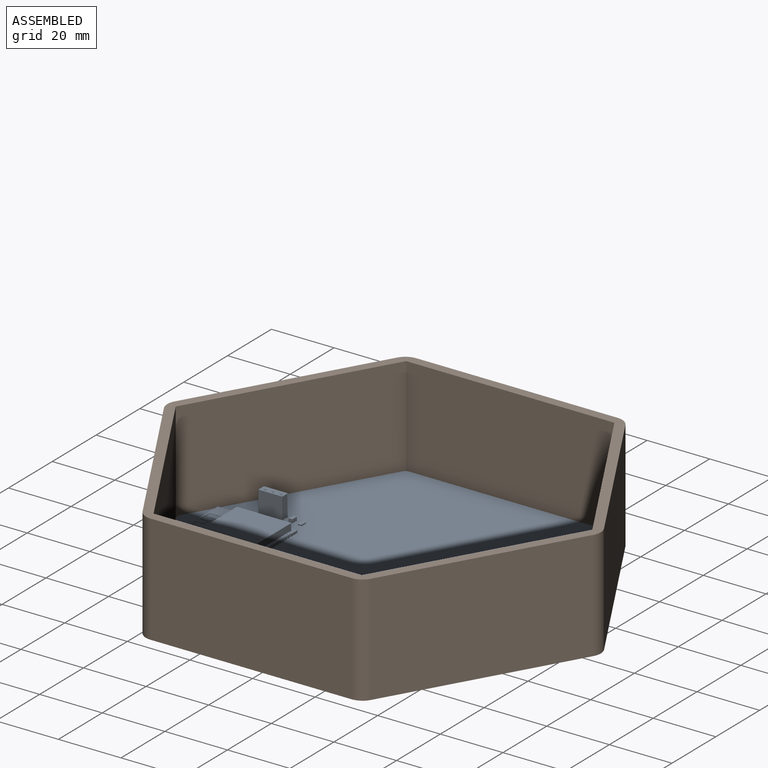
[diagram: assembled view]
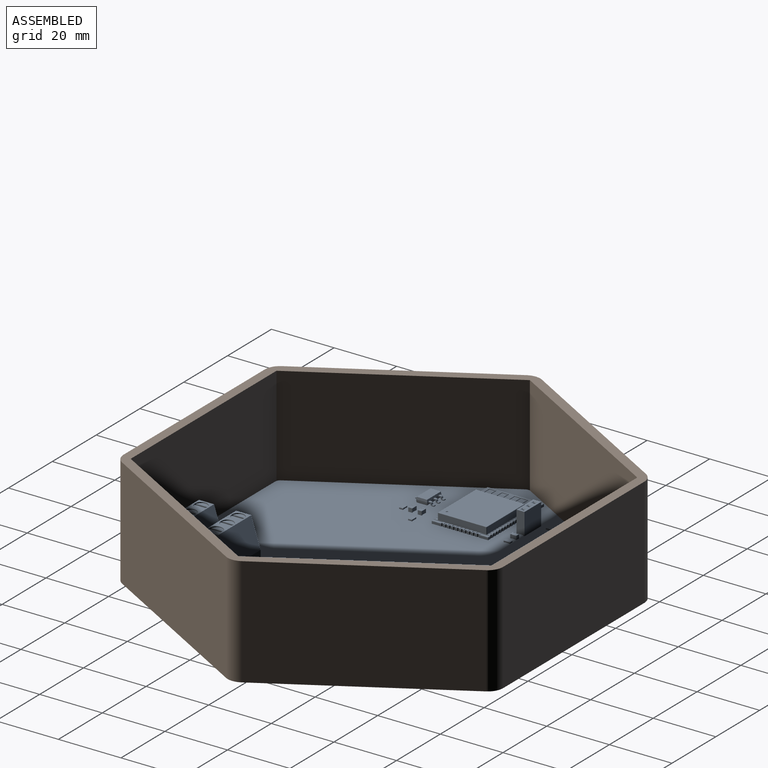
[diagram: assembled view, second angle]
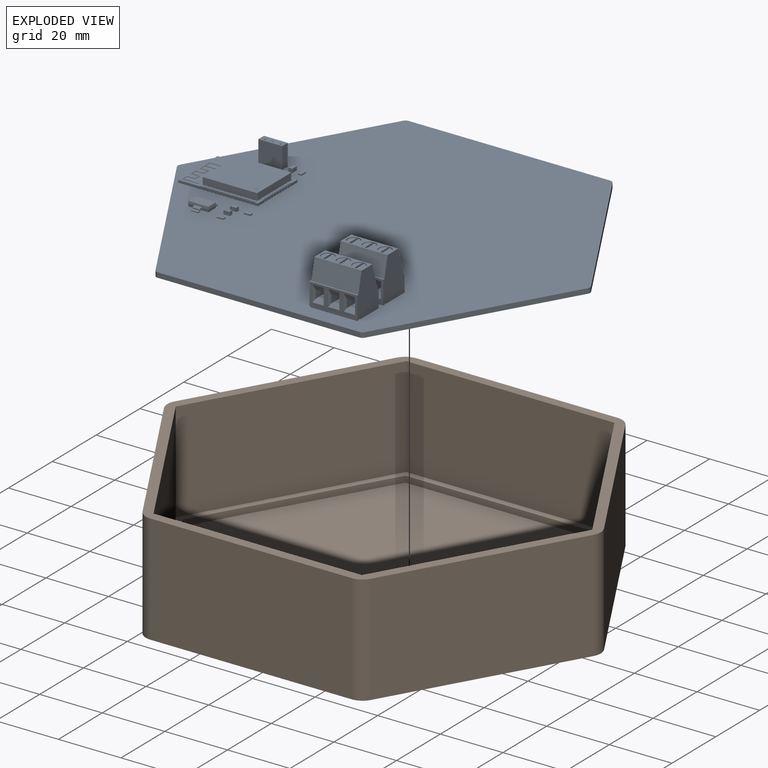
[diagram: exploded view]
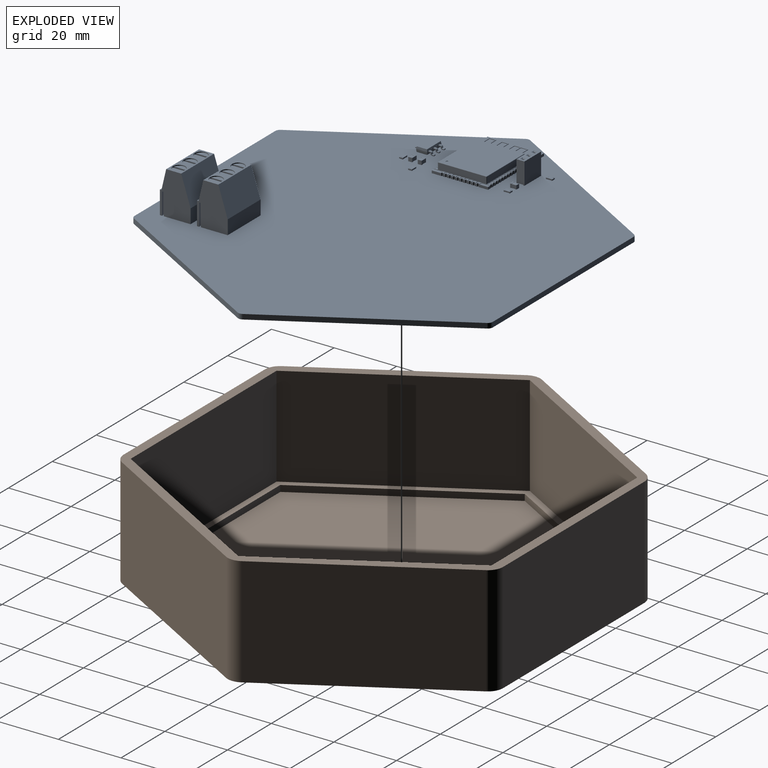
[diagram: exploded view, second angle]
FCSTD DOCUMENT  (FreeCAD 0.19R24276 (Git))
Label: Hexagonal Rev v0.0.0
License: All rights reserved
LicenseURL: http://en.wikipedia.org/wiki/All_rights_reserved
objects: App::Link×87, Part::Feature×9, App::Part×6, PartDesign::SubShapeBinder×3, Sketcher::SketchObject×2, PartDesign::Pad×2, Part::Offset2D×2, PartDesign::Pocket×2, PartDesign::Body×2, PartDesign::Fillet×1, PartDesign::CoordinateSystem×1
note: 29 computed .brp shape members not serialized (recipe doc carries the construction recipe); baked Part::Feature solids carry a one-line shape summary decoded from their .brp

FEATURE [Part::Feature] Feature  label="MW RS-15-006"
  Placement = pos=(-0.488075,-61.8454,-12) rot=(0.983106,0.129428,0.129428;1.58783rad)
  shape: bbox 69.45 x 101.1 x 28 mm, 1198 faces, 20 solids (baked)
FEATURE [Sketcher::SketchObject] Sketch
  FullyConstrained = true
  MapMode = 5
  Support = -> [XY_Plane001]
  sketch-geometry (7):
    g0: LineSegment StartX=70 StartY=0 StartZ=0 EndX=35 EndY=60.6218 EndZ=0
    g1: LineSegment StartX=35 StartY=60.6218 StartZ=0 EndX=-35 EndY=60.6218 EndZ=0
    g2: LineSegment StartX=-35 StartY=60.6218 StartZ=0 EndX=-70 EndY=2.13e-14 EndZ=0
    g3: LineSegment StartX=-70 StartY=1.86e-14 StartZ=0 EndX=-35 EndY=-60.6218 EndZ=0
    g4: LineSegment StartX=-35 StartY=-60.6218 StartZ=0 EndX=35 EndY=-60.6218 EndZ=0
    g5: LineSegment StartX=35 StartY=-60.6218 StartZ=0 EndX=70 EndY=0 EndZ=0
    g6: Circle CenterX=0 CenterY=0 CenterZ=0 NormalX=0 NormalY=0 NormalZ=1 AngleXU=0 Radius=70
  constraints (16):
    c: Coincident(g0,g1)
    c: Coincident(g1,g2)
    c: Coincident(g2,g3)
    c: Coincident(g3,g4)
    c: Coincident(g4,g5)
    c: Coincident(g5,g0)
    c: Equal(g0, g1-g5) x5
    c: PointOnObject(g0,g6)
    c: PointOnObject(g1,g6)
    c: PointOnObject(g2,g6)
    c: PointOnObject(g3,g6)
    c: PointOnObject(g4,g6)
    c: PointOnObject(g5,g6)
    c: Coincident(g6,g-1)
    c: PointOnObject(g0,g-1)
    c: Distance(g0,g2) = 140
FEATURE [PartDesign::Pad] Pad
  Direction = (1,1,1)
  Length = 34
  Length2 = 100
  Profile = -> Sketch
  Type = 0
FEATURE [PartDesign::SubShapeBinder] Binder
  BindMode = 0
  ClaimChildren = false
  Context = -> Part [Body.Binder.]
  Fuse = false
  MakeFace = true
  PartialLoad = false
  Relative = true
  Support = -> [Pad[Face8]]
  _Version = 2
FEATURE [Part::Offset2D] Offset2D
  Fill = false
  Intersection = false
  Join = 0
  Mode = 1
  SelfIntersection = false
  Source = -> Binder
  Value = -3
FEATURE [PartDesign::Pocket] Pocket
  BaseFeature = -> Pad
  Length = 32
  Length2 = 100
  Profile = -> Offset2D
  Type = 0
  expr: Length = Pad.Length - 2mm
FEATURE [PartDesign::SubShapeBinder] Binder001
  BindMode = 0
  ClaimChildren = false
  Context = -> Part [Body.Binder001.]
  Fuse = false
  MakeFace = true
  PartialLoad = false
  Relative = true
  Support = -> [Pocket[Face15]]
  _Version = 2
FEATURE [Part::Offset2D] Offset2D001
  Fill = false
  Intersection = false
  Join = 0
  Mode = 1
  SelfIntersection = false
  Source = -> Binder001
  Value = -2
FEATURE [PartDesign::Pocket] Pocket001
  BaseFeature = -> Pocket
  Length = 5
  Length2 = 100
  Profile = -> Offset2D001
  Type = 1
FEATURE [PartDesign::Fillet] Fillet
  Base = -> Pocket001 [Edge2,Edge8,Edge30,Edge29,Edge5,Edge1]
  BaseFeature = -> Pocket001
  Radius = 5
  SupportTransform = false
FEATURE [PartDesign::Body] Body  label="Housing"
  Group = -> [Sketch,Pad,Binder,Offset2D,Pocket,Binder001,Offset2D001,Pocket001,Fillet]
  Origin = -> Origin001
  Tip = -> Fillet
FEATURE [PartDesign::SubShapeBinder] Binder002
  BindMode = 0
  ClaimChildren = false
  Context = -> Part [Body001.Binder002.]
  Fuse = false
  MakeFace = true
  PartialLoad = false
  Relative = true
  Support = -> [Body[Edge15,Edge13,Edge11,Edge9,Edge7,Edge5,Edge1,Edge8]]
  _Version = 2
FEATURE [PartDesign::Pad] Pad001
  Direction = (1,1,1)
  Length = 1
  Length2 = 100
  Profile = -> Binder002
  Reversed = true
  Type = 0
FEATURE [PartDesign::Body] Body001  label="Diffuser"
  Group = -> [Binder002,Pad001]
  Origin = -> Origin002
  Tip = -> Pad001
FEATURE [App::Part] Part  label="SpotBody"
  Group = -> [Body,Body001]
  Origin = -> Origin
FEATURE [PartDesign::CoordinateSystem] Local_CS_956a
  AttacherType = Attacher::AttachEngine3D
FEATURE [Part::Feature] Pcb_956a
  Placement = pos=(-100,100,0) rot=(0,0,1;0rad)
  shape: bbox 131.7 x 114.4 x 1.6 mm, 23 faces (baked)
FEATURE [Sketcher::SketchObject] PCB_Sketch_956a
  FullyConstrained = false
  sketch-geometry (12):
    g0: LineSegment StartX=65.6118 StartY=0.8 StartZ=0 EndX=33.499 EndY=56.422 EndZ=0
    g1: LineSegment StartX=32.1132 StartY=57.2223 StartZ=0 EndX=-32.113 EndY=57.2223 EndZ=0
    g2: LineSegment StartX=-33.499 StartY=56.422 StartZ=0 EndX=-65.612 EndY=0.8 EndZ=0
    g3: LineSegment StartX=-65.6118 StartY=-0.800311 StartZ=0 EndX=-33.499 EndY=-56.422 EndZ=0
    g4: LineSegment StartX=-32.1132 StartY=-57.2223 StartZ=0 EndX=32.113 EndY=-57.2223 EndZ=0
    g5: LineSegment StartX=33.499 StartY=-56.422 StartZ=0 EndX=65.612 EndY=-0.8 EndZ=0
    g6: ArcOfCircle CenterX=32.113 CenterY=55.622 CenterZ=0 NormalX=0 NormalY=0 NormalZ=1 AngleXU=0 Radius=1.60031 StartAngle=0.523486 EndAngle=1.57068
    g7: ArcOfCircle CenterX=-32.113 CenterY=55.622 CenterZ=0 NormalX=0 NormalY=0 NormalZ=1 AngleXU=0 Radius=1.60031 StartAngle=1.5708 EndAngle=2.61811
    g8: ArcOfCircle CenterX=-64.226 CenterY=-2.15721e-11 CenterZ=0 NormalX=0 NormalY=0 NormalZ=1 AngleXU=0 Radius=1.60031 StartAngle=2.61811 EndAngle=3.6653
    g9: ArcOfCircle CenterX=-32.113 CenterY=-55.622 CenterZ=0 NormalX=0 NormalY=0 NormalZ=1 AngleXU=0 Radius=1.60031 StartAngle=3.66508 EndAngle=4.71228
    g10: ArcOfCircle CenterX=32.113 CenterY=-55.622 CenterZ=0 NormalX=0 NormalY=0 NormalZ=1 AngleXU=0 Radius=1.60031 StartAngle=4.71239 EndAngle=5.7597
    g11: ArcOfCircle CenterX=64.226 CenterY=-0.000155635 CenterZ=0 NormalX=0 NormalY=0 NormalZ=1 AngleXU=0 Radius=1.60023 StartAngle=5.75978 EndAngle=6.80681
  constraints (12):
    c: Coincident(g8,g3)
    c: Coincident(g2,g8)
    c: Coincident(g9,g3)
    c: Coincident(g2,g7)
    c: Coincident(g4,g9)
    c: Coincident(g1,g7)
    c: Coincident(g4,g10)
    c: Coincident(g6,g1)
    c: Coincident(g5,g10)
    c: Coincident(g0,g6)
    c: Coincident(g5,g11)
    c: Coincident(g0,g11)
FEATURE [App::Part] Board_Geoms_956a
  Group = -> [Local_CS_956a,Pcb_956a,PCB_Sketch_956a]
  Origin = -> Origin004
FEATURE [Part::Feature] Shape  label="U2_SOT_223_60925A65"
  Placement = pos=(-45.7,-17.7,0) rot=(0,0,-1;1.5708rad)
  shape: bbox 6.5 x 7 x 1.7 mm, 78 faces (baked)
FEATURE [Part::Feature] Shape001  label="U1_ESP32-WROOM-32_60925A4F"
  Placement = pos=(-43.95,0.3,0) rot=(0,0,1;1.5708rad)
  shape: bbox 25.5 x 18 x 3.1 mm, 751 faces (baked)
FEATURE [Part::Feature] Shape002  label="R6_R_0805_2012Metric_609259E0"
  Placement = pos=(36.13,31.64,-1.6) rot=(1,0,0;3.14159rad)
  shape: bbox 2 x 1.2 x 0.45 mm, 26 faces (baked)
FEATURE [App::Link] R6_R_0805_2012Metric_609259E0_ln_001  label="R4_R_0805_2012Metric_609259BE"
  LinkPlacement = pos=(-33.32,-14.31,0) rot=(0,0,1;0rad)
  LinkedObject = -> Shape002
  Placement = pos=(-33.32,-14.31,0) rot=(0,0,1;0rad)
FEATURE [App::Link] R6_R_0805_2012Metric_609259E0_ln_002  label="R3_R_0805_2012Metric_609259AD"
  LinkPlacement = pos=(-37.77,-20.33,0) rot=(0,0,1;0rad)
  LinkedObject = -> Shape002
  Placement = pos=(-37.77,-20.33,0) rot=(0,0,1;0rad)
FEATURE [App::Link] R6_R_0805_2012Metric_609259E0_ln_003  label="R2_R_0805_2012Metric_6092599C"
  LinkPlacement = pos=(-48.91,18.88,0) rot=(0,0,1;1.5708rad)
  LinkedObject = -> Shape002
  Placement = pos=(-48.91,18.88,0) rot=(0,0,1;1.5708rad)
FEATURE [App::Link] R6_R_0805_2012Metric_609259E0_ln_004  label="R1_R_0805_2012Metric_6092598B"
  LinkPlacement = pos=(-36.2,14.28,0) rot=(0,0,1;1.5708rad)
  LinkedObject = -> Shape002
  Placement = pos=(-36.2,14.28,0) rot=(0,0,1;1.5708rad)
FEATURE [Part::Feature] Shape003  label="J3_TerminalBlock_Phoenix_MKDS_15_3_1x03_P500mm_Horizontal_609365AA"
  Placement = pos=(15.4,-35.6,0) rot=(0,0,1;0rad)
  shape: bbox 15.74 x 9.8 x 17.3 mm, 125 faces (baked)
FEATURE [App::Link] J3_TerminalBlock_Phoenix_MKDS_15_3_1x03_P500mm_Horizontal_609365AA_ln_  label="J2_TerminalBlock_Phoenix_MKDS_15_3_1x03_P500mm_Horizontal_60935B61"
  LinkPlacement = pos=(15.4,-47.46,0) rot=(0,0,1;0rad)
  LinkedObject = -> Shape003
  Placement = pos=(15.4,-47.46,0) rot=(0,0,1;0rad)
FEATURE [Part::Feature] Shape004  label="J1_PinSocket_1x03_P254mm_Vertical_60925910"
  Placement = pos=(-48.06,14.4,0) rot=(0,0,1;1.5708rad)
  shape: bbox 7.62 x 2.54 x 10.1 mm, 103 faces (baked)
FEATURE [Part::Feature] Shape006  label="C44_C_0805_2012Metric_60925561"
  Placement = pos=(7.4,42.5,-1.6) rot=(1,0,0;3.14159rad)
  shape: bbox 2 x 1.25 x 1.25 mm, 28 faces (baked)
FEATURE [App::Link] C44_C_0805_2012Metric_60925561_ln_039  label="C3_C_0805_2012Metric_609252B9"
  LinkPlacement = pos=(-39.18,14.3,0) rot=(0,0,1;1.5708rad)
  LinkedObject = -> Shape006
  Placement = pos=(-39.18,14.3,0) rot=(0,0,1;1.5708rad)
FEATURE [App::Link] C44_C_0805_2012Metric_60925561_ln_040  label="C2_C_0805_2012Metric_609252A8"
  LinkPlacement = pos=(-37.75,-14.34,0) rot=(0,0,1;0rad)
  LinkedObject = -> Shape006
  Placement = pos=(-37.75,-14.34,0) rot=(0,0,1;0rad)
FEATURE [App::Link] C44_C_0805_2012Metric_60925561_ln_041  label="C1_C_0805_2012Metric_60925297"
  LinkPlacement = pos=(-37.75,-17.35,0) rot=(0,0,1;0rad)
  LinkedObject = -> Shape006
  Placement = pos=(-37.75,-17.35,0) rot=(0,0,1;0rad)
FEATURE [App::Part] Top_956a
  Group = -> [Shape,Shape001,R6_R_0805_2012Metric_609259E0_ln_001,R6_R_0805_2012Metric_609259E0_ln_002,R6_R_0805_2012Metric_609259E0_ln_003,R6_R_0805_2012Metric_609259E0_ln_004,Shape003,J3_TerminalBlock_Phoenix_MKDS_15_3_1x03_P500mm_Horizontal_609365AA_ln_,Shape004,C44_C_0805_2012Metric_60925561_ln_039,C44_C_0805_2012Metric_60925561_ln_040,C44_C_0805_2012Metric_60925561_ln_041]
  Origin = -> Origin006
FEATURE [App::Link] R6_R_0805_2012Metric_609259E0_ln_  label="R5_R_0805_2012Metric_609259CF"
  LinkPlacement = pos=(52.97,15.39,-1.6) rot=(1,0,0;3.14159rad)
  LinkedObject = -> Shape002
  Placement = pos=(52.97,15.39,-1.6) rot=(1,0,0;3.14159rad)
FEATURE [Part::Feature] Shape005  label="D40_LED_WS2812B_PLCC4_50x50mm_P32mm_609324D2"
  Placement = pos=(13.065,32.385,-1.6) rot=(1,0,0;3.14159rad)
  shape: bbox 5.4 x 5 x 1.6 mm, 68 faces (baked)
FEATURE [App::Link] D40_LED_WS2812B_PLCC4_50x50mm_P32mm_609324D2_ln_  label="D39_LED_WS2812B_PLCC4_50x50mm_P32mm_60932514"
  LinkPlacement = pos=(-20.615,19.145,-1.6) rot=(1,0,0;3.14159rad)
  LinkedObject = -> Shape005
  Placement = pos=(-20.615,19.145,-1.6) rot=(1,0,0;3.14159rad)
FEATURE [App::Link] D40_LED_WS2812B_PLCC4_50x50mm_P32mm_609324D2_ln_001  label="D38_LED_WS2812B_PLCC4_50x50mm_P32mm_60932556"
  LinkPlacement = pos=(-12.195,12.525,-1.6) rot=(1,0,0;3.14159rad)
  LinkedObject = -> Shape005
  Placement = pos=(-12.195,12.525,-1.6) rot=(1,0,0;3.14159rad)
FEATURE [App::Link] D40_LED_WS2812B_PLCC4_50x50mm_P32mm_609324D2_ln_002  label="D37_LED_WS2812B_PLCC4_50x50mm_P32mm_60932598"
  LinkPlacement = pos=(-3.775,5.905,-1.6) rot=(1,0,0;3.14159rad)
  LinkedObject = -> Shape005
  Placement = pos=(-3.775,5.905,-1.6) rot=(1,0,0;3.14159rad)
FEATURE [App::Link] D40_LED_WS2812B_PLCC4_50x50mm_P32mm_609324D2_ln_003  label="D36_LED_WS2812B_PLCC4_50x50mm_P32mm_609325DA"
  LinkPlacement = pos=(4.645,-0.715,-1.6) rot=(1,0,0;3.14159rad)
  LinkedObject = -> Shape005
  Placement = pos=(4.645,-0.715,-1.6) rot=(1,0,0;3.14159rad)
FEATURE [App::Link] D40_LED_WS2812B_PLCC4_50x50mm_P32mm_609324D2_ln_004  label="D35_LED_WS2812B_PLCC4_50x50mm_P32mm_6093261C"
  LinkPlacement = pos=(-20.615,25.765,-1.6) rot=(1,0,0;3.14159rad)
  LinkedObject = -> Shape005
  Placement = pos=(-20.615,25.765,-1.6) rot=(1,0,0;3.14159rad)
FEATURE [App::Link] D40_LED_WS2812B_PLCC4_50x50mm_P32mm_609324D2_ln_005  label="D34_LED_WS2812B_PLCC4_50x50mm_P32mm_6093265E"
  LinkPlacement = pos=(-20.615,-0.715,-1.6) rot=(1,0,0;3.14159rad)
  LinkedObject = -> Shape005
  Placement = pos=(-20.615,-0.715,-1.6) rot=(1,0,0;3.14159rad)
FEATURE [App::Link] D40_LED_WS2812B_PLCC4_50x50mm_P32mm_609324D2_ln_006  label="D33_LED_WS2812B_PLCC4_50x50mm_P32mm_609326A0"
  LinkPlacement = pos=(-3.775,12.525,-1.6) rot=(1,0,0;3.14159rad)
  LinkedObject = -> Shape005
  Placement = pos=(-3.775,12.525,-1.6) rot=(1,0,0;3.14159rad)
FEATURE [App::Link] D40_LED_WS2812B_PLCC4_50x50mm_P32mm_609324D2_ln_007  label="D32_LED_WS2812B_PLCC4_50x50mm_P32mm_609326E2"
  LinkPlacement = pos=(4.645,5.905,-1.6) rot=(1,0,0;3.14159rad)
  LinkedObject = -> Shape005
  Placement = pos=(4.645,5.905,-1.6) rot=(1,0,0;3.14159rad)
FEATURE [App::Link] D40_LED_WS2812B_PLCC4_50x50mm_P32mm_609324D2_ln_008  label="D31_LED_WS2812B_PLCC4_50x50mm_P32mm_60932724"
  LinkPlacement = pos=(13.065,-0.715,-1.6) rot=(1,0,0;3.14159rad)
  LinkedObject = -> Shape005
  Placement = pos=(13.065,-0.715,-1.6) rot=(1,0,0;3.14159rad)
FEATURE [App::Link] D40_LED_WS2812B_PLCC4_50x50mm_P32mm_609324D2_ln_009  label="D30_LED_WS2812B_PLCC4_50x50mm_P32mm_60932766"
  LinkPlacement = pos=(-3.775,-0.715,-1.6) rot=(1,0,0;3.14159rad)
  LinkedObject = -> Shape005
  Placement = pos=(-3.775,-0.715,-1.6) rot=(1,0,0;3.14159rad)
FEATURE [App::Link] D40_LED_WS2812B_PLCC4_50x50mm_P32mm_609324D2_ln_010  label="D29_LED_WS2812B_PLCC4_50x50mm_P32mm_60932280"
  LinkPlacement = pos=(-20.615,5.905,-1.6) rot=(1,0,0;3.14159rad)
  LinkedObject = -> Shape005
  Placement = pos=(-20.615,5.905,-1.6) rot=(1,0,0;3.14159rad)
FEATURE [App::Link] D40_LED_WS2812B_PLCC4_50x50mm_P32mm_609324D2_ln_011  label="D28_LED_WS2812B_PLCC4_50x50mm_P32mm_609322C2"
  LinkPlacement = pos=(51.1,1.7,-1.6) rot=(1,0,0;3.14159rad)
  LinkedObject = -> Shape005
  Placement = pos=(51.1,1.7,-1.6) rot=(1,0,0;3.14159rad)
FEATURE [App::Link] D40_LED_WS2812B_PLCC4_50x50mm_P32mm_609324D2_ln_012  label="D27_LED_WS2812B_PLCC4_50x50mm_P32mm_60932304"
  LinkPlacement = pos=(40.525,6.855,-1.6) rot=(1,0,0;3.14159rad)
  LinkedObject = -> Shape005
  Placement = pos=(40.525,6.855,-1.6) rot=(1,0,0;3.14159rad)
FEATURE [App::Link] D40_LED_WS2812B_PLCC4_50x50mm_P32mm_609324D2_ln_013  label="D26_LED_WS2812B_PLCC4_50x50mm_P32mm_60932388"
  LinkPlacement = pos=(31.855,12.025,-1.6) rot=(1,0,0;3.14159rad)
  LinkedObject = -> Shape005
  Placement = pos=(31.855,12.025,-1.6) rot=(1,0,0;3.14159rad)
FEATURE [App::Link] D40_LED_WS2812B_PLCC4_50x50mm_P32mm_609324D2_ln_014  label="D25_LED_WS2812B_PLCC4_50x50mm_P32mm_609323CA"
  LinkPlacement = pos=(22.335,17.695,-1.6) rot=(1,0,0;3.14159rad)
  LinkedObject = -> Shape005
  Placement = pos=(22.335,17.695,-1.6) rot=(1,0,0;3.14159rad)
FEATURE [App::Link] D40_LED_WS2812B_PLCC4_50x50mm_P32mm_609324D2_ln_015  label="D24_LED_WS2812B_PLCC4_50x50mm_P32mm_6093240C"
  LinkPlacement = pos=(-3.775,25.765,-1.6) rot=(1,0,0;3.14159rad)
  LinkedObject = -> Shape005
  Placement = pos=(-3.775,25.765,-1.6) rot=(1,0,0;3.14159rad)
FEATURE [App::Link] D40_LED_WS2812B_PLCC4_50x50mm_P32mm_609324D2_ln_016  label="D23_LED_WS2812B_PLCC4_50x50mm_P32mm_6093244E"
  LinkPlacement = pos=(4.645,19.145,-1.6) rot=(1,0,0;3.14159rad)
  LinkedObject = -> Shape005
  Placement = pos=(4.645,19.145,-1.6) rot=(1,0,0;3.14159rad)
FEATURE [App::Link] D40_LED_WS2812B_PLCC4_50x50mm_P32mm_609324D2_ln_017  label="D22_LED_WS2812B_PLCC4_50x50mm_P32mm_60932346"
  LinkPlacement = pos=(13.065,12.525,-1.6) rot=(1,0,0;3.14159rad)
  LinkedObject = -> Shape005
  Placement = pos=(13.065,12.525,-1.6) rot=(1,0,0;3.14159rad)
FEATURE [App::Link] D40_LED_WS2812B_PLCC4_50x50mm_P32mm_609324D2_ln_018  label="D21_LED_WS2812B_PLCC4_50x50mm_P32mm_609327A8"
  LinkPlacement = pos=(22.335,4.455,-1.6) rot=(1,0,0;3.14159rad)
  LinkedObject = -> Shape005
  Placement = pos=(22.335,4.455,-1.6) rot=(1,0,0;3.14159rad)
FEATURE [App::Link] D40_LED_WS2812B_PLCC4_50x50mm_P32mm_609324D2_ln_019  label="D20_LED_WS2812B_PLCC4_50x50mm_P32mm_60931D9A"
  LinkPlacement = pos=(31.855,-1.215,-1.6) rot=(1,0,0;3.14159rad)
  LinkedObject = -> Shape005
  Placement = pos=(31.855,-1.215,-1.6) rot=(1,0,0;3.14159rad)
FEATURE [App::Link] D40_LED_WS2812B_PLCC4_50x50mm_P32mm_609324D2_ln_020  label="D19_LED_WS2812B_PLCC4_50x50mm_P32mm_60931DDC"
  LinkPlacement = pos=(-3.775,32.385,-1.6) rot=(1,0,0;3.14159rad)
  LinkedObject = -> Shape005
  Placement = pos=(-3.775,32.385,-1.6) rot=(1,0,0;3.14159rad)
FEATURE [App::Link] D40_LED_WS2812B_PLCC4_50x50mm_P32mm_609324D2_ln_021  label="D18_LED_WS2812B_PLCC4_50x50mm_P32mm_60931E1E"
  LinkPlacement = pos=(4.645,25.765,-1.6) rot=(1,0,0;3.14159rad)
  LinkedObject = -> Shape005
  Placement = pos=(4.645,25.765,-1.6) rot=(1,0,0;3.14159rad)
FEATURE [App::Link] D40_LED_WS2812B_PLCC4_50x50mm_P32mm_609324D2_ln_022  label="D17_LED_WS2812B_PLCC4_50x50mm_P32mm_60931E60"
  LinkPlacement = pos=(13.065,19.145,-1.6) rot=(1,0,0;3.14159rad)
  LinkedObject = -> Shape005
  Placement = pos=(13.065,19.145,-1.6) rot=(1,0,0;3.14159rad)
FEATURE [App::Link] D40_LED_WS2812B_PLCC4_50x50mm_P32mm_609324D2_ln_023  label="D16_LED_WS2812B_PLCC4_50x50mm_P32mm_60931EA2"
  LinkPlacement = pos=(22.335,11.075,-1.6) rot=(1,0,0;3.14159rad)
  LinkedObject = -> Shape005
  Placement = pos=(22.335,11.075,-1.6) rot=(1,0,0;3.14159rad)
FEATURE [App::Link] D40_LED_WS2812B_PLCC4_50x50mm_P32mm_609324D2_ln_024  label="D15_LED_WS2812B_PLCC4_50x50mm_P32mm_60931EE4"
  LinkPlacement = pos=(-12.195,32.385,-1.6) rot=(1,0,0;3.14159rad)
  LinkedObject = -> Shape005
  Placement = pos=(-12.195,32.385,-1.6) rot=(1,0,0;3.14159rad)
FEATURE [App::Link] D40_LED_WS2812B_PLCC4_50x50mm_P32mm_609324D2_ln_025  label="D14_LED_WS2812B_PLCC4_50x50mm_P32mm_60931F26"
  LinkPlacement = pos=(31.855,5.405,-1.6) rot=(1,0,0;3.14159rad)
  LinkedObject = -> Shape005
  Placement = pos=(31.855,5.405,-1.6) rot=(1,0,0;3.14159rad)
FEATURE [App::Link] D40_LED_WS2812B_PLCC4_50x50mm_P32mm_609324D2_ln_026  label="D13_LED_WS2812B_PLCC4_50x50mm_P32mm_60931F68"
  LinkPlacement = pos=(40.525,0.235,-1.6) rot=(1,0,0;3.14159rad)
  LinkedObject = -> Shape005
  Placement = pos=(40.525,0.235,-1.6) rot=(1,0,0;3.14159rad)
FEATURE [App::Link] D40_LED_WS2812B_PLCC4_50x50mm_P32mm_609324D2_ln_027  label="D12_LED_WS2812B_PLCC4_50x50mm_P32mm_60931FAA"
  LinkPlacement = pos=(4.645,32.385,-1.6) rot=(1,0,0;3.14159rad)
  LinkedObject = -> Shape005
  Placement = pos=(4.645,32.385,-1.6) rot=(1,0,0;3.14159rad)
FEATURE [App::Link] D40_LED_WS2812B_PLCC4_50x50mm_P32mm_609324D2_ln_028  label="D11_LED_WS2812B_PLCC4_50x50mm_P32mm_60931FEC"
  LinkPlacement = pos=(-12.195,19.145,-1.6) rot=(1,0,0;3.14159rad)
  LinkedObject = -> Shape005
  Placement = pos=(-12.195,19.145,-1.6) rot=(1,0,0;3.14159rad)
FEATURE [App::Link] D40_LED_WS2812B_PLCC4_50x50mm_P32mm_609324D2_ln_029  label="D10_LED_WS2812B_PLCC4_50x50mm_P32mm_6093202E"
  LinkPlacement = pos=(13.065,25.765,-1.6) rot=(1,0,0;3.14159rad)
  LinkedObject = -> Shape005
  Placement = pos=(13.065,25.765,-1.6) rot=(1,0,0;3.14159rad)
FEATURE [App::Link] D40_LED_WS2812B_PLCC4_50x50mm_P32mm_609324D2_ln_030  label="D9_LED_WS2812B_PLCC4_50x50mm_P32mm_60932490"
  LinkPlacement = pos=(-12.195,-0.715,-1.6) rot=(1,0,0;3.14159rad)
  LinkedObject = -> Shape005
  Placement = pos=(-12.195,-0.715,-1.6) rot=(1,0,0;3.14159rad)
FEATURE [App::Link] D40_LED_WS2812B_PLCC4_50x50mm_P32mm_609324D2_ln_031  label="D8_LED_WS2812B_PLCC4_50x50mm_P32mm_60932070"
  LinkPlacement = pos=(-20.615,12.525,-1.6) rot=(1,0,0;3.14159rad)
  LinkedObject = -> Shape005
  Placement = pos=(-20.615,12.525,-1.6) rot=(1,0,0;3.14159rad)
FEATURE [App::Link] D40_LED_WS2812B_PLCC4_50x50mm_P32mm_609324D2_ln_032  label="D7_LED_WS2812B_PLCC4_50x50mm_P32mm_609320B2"
  LinkPlacement = pos=(-12.195,5.905,-1.6) rot=(1,0,0;3.14159rad)
  LinkedObject = -> Shape005
  Placement = pos=(-12.195,5.905,-1.6) rot=(1,0,0;3.14159rad)
FEATURE [App::Link] D40_LED_WS2812B_PLCC4_50x50mm_P32mm_609324D2_ln_033  label="D6_LED_WS2812B_PLCC4_50x50mm_P32mm_609320F4"
  LinkPlacement = pos=(-20.615,32.385,-1.6) rot=(1,0,0;3.14159rad)
  LinkedObject = -> Shape005
  Placement = pos=(-20.615,32.385,-1.6) rot=(1,0,0;3.14159rad)
FEATURE [App::Link] D40_LED_WS2812B_PLCC4_50x50mm_P32mm_609324D2_ln_034  label="D5_LED_WS2812B_PLCC4_50x50mm_P32mm_60932136"
  LinkPlacement = pos=(-12.195,25.765,-1.6) rot=(1,0,0;3.14159rad)
  LinkedObject = -> Shape005
  Placement = pos=(-12.195,25.765,-1.6) rot=(1,0,0;3.14159rad)
FEATURE [App::Link] D40_LED_WS2812B_PLCC4_50x50mm_P32mm_609324D2_ln_035  label="D4_LED_WS2812B_PLCC4_50x50mm_P32mm_60932178"
  LinkPlacement = pos=(22.335,-2.165,-1.6) rot=(1,0,0;3.14159rad)
  LinkedObject = -> Shape005
  Placement = pos=(22.335,-2.165,-1.6) rot=(1,0,0;3.14159rad)
FEATURE [App::Link] D40_LED_WS2812B_PLCC4_50x50mm_P32mm_609324D2_ln_036  label="D3_LED_WS2812B_PLCC4_50x50mm_P32mm_609321BA"
  LinkPlacement = pos=(13.065,5.905,-1.6) rot=(1,0,0;3.14159rad)
  LinkedObject = -> Shape005
  Placement = pos=(13.065,5.905,-1.6) rot=(1,0,0;3.14159rad)
FEATURE [App::Link] D40_LED_WS2812B_PLCC4_50x50mm_P32mm_609324D2_ln_037  label="D2_LED_WS2812B_PLCC4_50x50mm_P32mm_609321FC"
  LinkPlacement = pos=(4.645,12.525,-1.6) rot=(1,0,0;3.14159rad)
  LinkedObject = -> Shape005
  Placement = pos=(4.645,12.525,-1.6) rot=(1,0,0;3.14159rad)
FEATURE [App::Link] D40_LED_WS2812B_PLCC4_50x50mm_P32mm_609324D2_ln_038  label="D1_LED_WS2812B_PLCC4_50x50mm_P32mm_6093223E"
  LinkPlacement = pos=(-3.775,19.145,-1.6) rot=(1,0,0;3.14159rad)
  LinkedObject = -> Shape005
  Placement = pos=(-3.775,19.145,-1.6) rot=(1,0,0;3.14159rad)
FEATURE [App::Link] C44_C_0805_2012Metric_60925561_ln_  label="C43_C_0805_2012Metric_60925550"
  LinkPlacement = pos=(12.3,47.55,-1.6) rot=(1,0,0;3.14159rad)
  LinkedObject = -> Shape006
  Placement = pos=(12.3,47.55,-1.6) rot=(1,0,0;3.14159rad)
FEATURE [App::Link] C44_C_0805_2012Metric_60925561_ln_001  label="C42_C_0805_2012Metric_6092553F"
  LinkPlacement = pos=(31.22,22.64,-1.6) rot=(1,0,0;3.14159rad)
  LinkedObject = -> Shape006
  Placement = pos=(31.22,22.64,-1.6) rot=(1,0,0;3.14159rad)
FEATURE [App::Link] C44_C_0805_2012Metric_60925561_ln_002  label="C41_C_0805_2012Metric_6092552E"
  LinkPlacement = pos=(39.64,16.02,-1.6) rot=(1,0,0;3.14159rad)
  LinkedObject = -> Shape006
  Placement = pos=(39.64,16.02,-1.6) rot=(1,0,0;3.14159rad)
FEATURE [App::Link] C44_C_0805_2012Metric_60925561_ln_003  label="C40_C_0805_2012Metric_6092551D"
  LinkPlacement = pos=(22.8,32.27,-1.6) rot=(1,0,0;3.14159rad)
  LinkedObject = -> Shape006
  Placement = pos=(22.8,32.27,-1.6) rot=(1,0,0;3.14159rad)
FEATURE [App::Link] C44_C_0805_2012Metric_60925561_ln_004  label="C39_C_0805_2012Metric_6092550C"
  LinkPlacement = pos=(11.85,42.5,-1.6) rot=(1,0,0;3.14159rad)
  LinkedObject = -> Shape006
  Placement = pos=(11.85,42.5,-1.6) rot=(1,0,0;3.14159rad)
FEATURE [App::Link] C44_C_0805_2012Metric_60925561_ln_005  label="C38_C_0805_2012Metric_609254FB"
  LinkPlacement = pos=(48.06,9.4,-1.6) rot=(1,0,0;3.14159rad)
  LinkedObject = -> Shape006
  Placement = pos=(48.06,9.4,-1.6) rot=(1,0,0;3.14159rad)
FEATURE [App::Link] C44_C_0805_2012Metric_60925561_ln_006  label="C37_C_0805_2012Metric_609254EA"
  LinkPlacement = pos=(31.22,25.65,-1.6) rot=(1,0,0;3.14159rad)
  LinkedObject = -> Shape006
  Placement = pos=(31.22,25.65,-1.6) rot=(1,0,0;3.14159rad)
FEATURE [App::Link] C44_C_0805_2012Metric_60925561_ln_007  label="C36_C_0805_2012Metric_609254D9"
  LinkPlacement = pos=(27.25,29.26,-1.6) rot=(1,0,0;3.14159rad)
  LinkedObject = -> Shape006
  Placement = pos=(27.25,29.26,-1.6) rot=(1,0,0;3.14159rad)
FEATURE [App::Link] C44_C_0805_2012Metric_60925561_ln_008  label="C35_C_0805_2012Metric_609254C8"
  LinkPlacement = pos=(16.3,42.5,-1.6) rot=(1,0,0;3.14159rad)
  LinkedObject = -> Shape006
  Placement = pos=(16.3,42.5,-1.6) rot=(1,0,0;3.14159rad)
FEATURE [App::Link] C44_C_0805_2012Metric_60925561_ln_009  label="C34_C_0805_2012Metric_609254B7"
  LinkPlacement = pos=(30.1,47.55,-1.6) rot=(1,0,0;3.14159rad)
  LinkedObject = -> Shape006
  Placement = pos=(30.1,47.55,-1.6) rot=(1,0,0;3.14159rad)
FEATURE [App::Link] C44_C_0805_2012Metric_60925561_ln_010  label="C33_C_0805_2012Metric_609254A6"
  LinkPlacement = pos=(27.25,38.29,-1.6) rot=(1,0,0;3.14159rad)
  LinkedObject = -> Shape006
  Placement = pos=(27.25,38.29,-1.6) rot=(1,0,0;3.14159rad)
FEATURE [App::Link] C44_C_0805_2012Metric_60925561_ln_011  label="C32_C_0805_2012Metric_60925495"
  LinkPlacement = pos=(31.7,28.66,-1.6) rot=(1,0,0;3.14159rad)
  LinkedObject = -> Shape006
  Placement = pos=(31.7,28.66,-1.6) rot=(1,0,0;3.14159rad)
FEATURE [App::Link] C44_C_0805_2012Metric_60925561_ln_012  label="C31_C_0805_2012Metric_60925484"
  LinkPlacement = pos=(20.75,42.5,-1.6) rot=(1,0,0;3.14159rad)
  LinkedObject = -> Shape006
  Placement = pos=(20.75,42.5,-1.6) rot=(1,0,0;3.14159rad)
FEATURE [App::Link] C44_C_0805_2012Metric_60925561_ln_013  label="C30_C_0805_2012Metric_60925473"
  LinkPlacement = pos=(27.25,35.28,-1.6) rot=(1,0,0;3.14159rad)
  LinkedObject = -> Shape006
  Placement = pos=(27.25,35.28,-1.6) rot=(1,0,0;3.14159rad)
FEATURE [App::Link] C44_C_0805_2012Metric_60925561_ln_014  label="C29_C_0805_2012Metric_60925462"
  LinkPlacement = pos=(44.09,19.03,-1.6) rot=(1,0,0;3.14159rad)
  LinkedObject = -> Shape006
  Placement = pos=(44.09,19.03,-1.6) rot=(1,0,0;3.14159rad)
FEATURE [App::Link] C44_C_0805_2012Metric_60925561_ln_015  label="C28_C_0805_2012Metric_60925451"
  LinkPlacement = pos=(40.12,22.04,-1.6) rot=(1,0,0;3.14159rad)
  LinkedObject = -> Shape006
  Placement = pos=(40.12,22.04,-1.6) rot=(1,0,0;3.14159rad)
FEATURE [App::Link] C44_C_0805_2012Metric_60925561_ln_016  label="C27_C_0805_2012Metric_60925440"
  LinkPlacement = pos=(48.54,15.42,-1.6) rot=(1,0,0;3.14159rad)
  LinkedObject = -> Shape006
  Placement = pos=(48.54,15.42,-1.6) rot=(1,0,0;3.14159rad)
FEATURE [App::Link] C44_C_0805_2012Metric_60925561_ln_017  label="C26_C_0805_2012Metric_6092542F"
  LinkPlacement = pos=(31.7,31.67,-1.6) rot=(1,0,0;3.14159rad)
  LinkedObject = -> Shape006
  Placement = pos=(31.7,31.67,-1.6) rot=(1,0,0;3.14159rad)
FEATURE [App::Link] C44_C_0805_2012Metric_60925561_ln_018  label="C25_C_0805_2012Metric_6092541E"
  LinkPlacement = pos=(52.51,12.41,-1.6) rot=(1,0,0;3.14159rad)
  LinkedObject = -> Shape006
  Placement = pos=(52.51,12.41,-1.6) rot=(1,0,0;3.14159rad)
FEATURE [App::Link] C44_C_0805_2012Metric_60925561_ln_019  label="C24_C_0805_2012Metric_6092540D"
  LinkPlacement = pos=(36.15,28.66,-1.6) rot=(1,0,0;3.14159rad)
  LinkedObject = -> Shape006
  Placement = pos=(36.15,28.66,-1.6) rot=(1,0,0;3.14159rad)
FEATURE [App::Link] C44_C_0805_2012Metric_60925561_ln_020  label="C23_C_0805_2012Metric_609253FC"
  LinkPlacement = pos=(40.12,25.05,-1.6) rot=(1,0,0;3.14159rad)
  LinkedObject = -> Shape006
  Placement = pos=(40.12,25.05,-1.6) rot=(1,0,0;3.14159rad)
FEATURE [App::Link] C44_C_0805_2012Metric_60925561_ln_021  label="C22_C_0805_2012Metric_609253EB"
  LinkPlacement = pos=(22.8,38.29,-1.6) rot=(1,0,0;3.14159rad)
  LinkedObject = -> Shape006
  Placement = pos=(22.8,38.29,-1.6) rot=(1,0,0;3.14159rad)
FEATURE [App::Link] C44_C_0805_2012Metric_60925561_ln_022  label="C21_C_0805_2012Metric_609253DA"
  LinkPlacement = pos=(25.2,41.3,-1.6) rot=(1,0,0;3.14159rad)
  LinkedObject = -> Shape006
  Placement = pos=(25.2,41.3,-1.6) rot=(1,0,0;3.14159rad)
FEATURE [App::Link] C44_C_0805_2012Metric_60925561_ln_023  label="C20_C_0805_2012Metric_609253C9"
  LinkPlacement = pos=(31.7,34.68,-1.6) rot=(1,0,0;3.14159rad)
  LinkedObject = -> Shape006
  Placement = pos=(31.7,34.68,-1.6) rot=(1,0,0;3.14159rad)
FEATURE [App::Link] C44_C_0805_2012Metric_60925561_ln_024  label="C19_C_0805_2012Metric_609253B8"
  LinkPlacement = pos=(48.54,18.43,-1.6) rot=(1,0,0;3.14159rad)
  LinkedObject = -> Shape006
  Placement = pos=(48.54,18.43,-1.6) rot=(1,0,0;3.14159rad)
FEATURE [App::Link] C44_C_0805_2012Metric_60925561_ln_025  label="C18_C_0805_2012Metric_609253A7"
  LinkPlacement = pos=(22.8,35.28,-1.6) rot=(1,0,0;3.14159rad)
  LinkedObject = -> Shape006
  Placement = pos=(22.8,35.28,-1.6) rot=(1,0,0;3.14159rad)
FEATURE [App::Link] C44_C_0805_2012Metric_60925561_ln_026  label="C17_C_0805_2012Metric_60925396"
  LinkPlacement = pos=(44.57,22.04,-1.6) rot=(1,0,0;3.14159rad)
  LinkedObject = -> Shape006
  Placement = pos=(44.57,22.04,-1.6) rot=(1,0,0;3.14159rad)
FEATURE [App::Link] C44_C_0805_2012Metric_60925561_ln_027  label="C16_C_0805_2012Metric_60925385"
  LinkPlacement = pos=(7.85,47.55,-1.6) rot=(1,0,0;3.14159rad)
  LinkedObject = -> Shape006
  Placement = pos=(7.85,47.55,-1.6) rot=(1,0,0;3.14159rad)
FEATURE [App::Link] C44_C_0805_2012Metric_60925561_ln_028  label="C15_C_0805_2012Metric_60925374"
  LinkPlacement = pos=(25.65,47.55,-1.6) rot=(1,0,0;3.14159rad)
  LinkedObject = -> Shape006
  Placement = pos=(25.65,47.55,-1.6) rot=(1,0,0;3.14159rad)
FEATURE [App::Link] C44_C_0805_2012Metric_60925561_ln_029  label="C14_C_0805_2012Metric_60925363"
  LinkPlacement = pos=(21.2,47.55,-1.6) rot=(1,0,0;3.14159rad)
  LinkedObject = -> Shape006
  Placement = pos=(21.2,47.55,-1.6) rot=(1,0,0;3.14159rad)
FEATURE [App::Link] C44_C_0805_2012Metric_60925561_ln_030  label="C13_C_0805_2012Metric_60925352"
  LinkPlacement = pos=(16.75,47.55,-1.6) rot=(1,0,0;3.14159rad)
  LinkedObject = -> Shape006
  Placement = pos=(16.75,47.55,-1.6) rot=(1,0,0;3.14159rad)
FEATURE [App::Link] C44_C_0805_2012Metric_60925561_ln_031  label="C12_C_0805_2012Metric_60925341"
  LinkPlacement = pos=(22.8,29.26,-1.6) rot=(1,0,0;3.14159rad)
  LinkedObject = -> Shape006
  Placement = pos=(22.8,29.26,-1.6) rot=(1,0,0;3.14159rad)
FEATURE [App::Link] C44_C_0805_2012Metric_60925561_ln_032  label="C11_C_0805_2012Metric_60925330"
  LinkPlacement = pos=(35.67,25.65,-1.6) rot=(1,0,0;3.14159rad)
  LinkedObject = -> Shape006
  Placement = pos=(35.67,25.65,-1.6) rot=(1,0,0;3.14159rad)
FEATURE [App::Link] C44_C_0805_2012Metric_60925561_ln_033  label="C10_C_0805_2012Metric_6092531F"
  LinkPlacement = pos=(52.51,9.4,-1.6) rot=(1,0,0;3.14159rad)
  LinkedObject = -> Shape006
  Placement = pos=(52.51,9.4,-1.6) rot=(1,0,0;3.14159rad)
FEATURE [App::Link] C44_C_0805_2012Metric_60925561_ln_034  label="C9_C_0805_2012Metric_6092530E"
  LinkPlacement = pos=(48.06,12.41,-1.6) rot=(1,0,0;3.14159rad)
  LinkedObject = -> Shape006
  Placement = pos=(48.06,12.41,-1.6) rot=(1,0,0;3.14159rad)
FEATURE [App::Link] C44_C_0805_2012Metric_60925561_ln_035  label="C8_C_0805_2012Metric_609252FD"
  LinkPlacement = pos=(27.25,32.27,-1.6) rot=(1,0,0;3.14159rad)
  LinkedObject = -> Shape006
  Placement = pos=(27.25,32.27,-1.6) rot=(1,0,0;3.14159rad)
FEATURE [App::Link] C44_C_0805_2012Metric_60925561_ln_036  label="C7_C_0805_2012Metric_609252EC"
  LinkPlacement = pos=(44.09,16.02,-1.6) rot=(1,0,0;3.14159rad)
  LinkedObject = -> Shape006
  Placement = pos=(44.09,16.02,-1.6) rot=(1,0,0;3.14159rad)
FEATURE [App::Link] C44_C_0805_2012Metric_60925561_ln_037  label="C6_C_0805_2012Metric_609252DB"
  LinkPlacement = pos=(35.67,22.64,-1.6) rot=(1,0,0;3.14159rad)
  LinkedObject = -> Shape006
  Placement = pos=(35.67,22.64,-1.6) rot=(1,0,0;3.14159rad)
FEATURE [App::Link] C44_C_0805_2012Metric_60925561_ln_038  label="C5_C_0805_2012Metric_60926D8E"
  LinkPlacement = pos=(39.64,19.03,-1.6) rot=(1,0,0;3.14159rad)
  LinkedObject = -> Shape006
  Placement = pos=(39.64,19.03,-1.6) rot=(1,0,0;3.14159rad)
FEATURE [App::Part] Bot_956a
  Group = -> [Shape002,R6_R_0805_2012Metric_609259E0_ln_,Shape005,D40_LED_WS2812B_PLCC4_50x50mm_P32mm_609324D2_ln_,D40_LED_WS2812B_PLCC4_50x50mm_P32mm_609324D2_ln_001,D40_LED_WS2812B_PLCC4_50x50mm_P32mm_609324D2_ln_002,D40_LED_WS2812B_PLCC4_50x50mm_P32mm_609324D2_ln_003,D40_LED_WS2812B_PLCC4_50x50mm_P32mm_609324D2_ln_004,D40_LED_WS2812B_PLCC4_50x50mm_P32mm_609324D2_ln_005,+73 more]
  Origin = -> Origin007
FEATURE [App::Part] Step_Models_956a
  Group = -> [Top_956a,Bot_956a]
  Origin = -> Origin005
FEATURE [App::Part] Board_956a  label="circuits"
  Group = -> [Board_Geoms_956a,Step_Models_956a]
  Origin = -> Origin003
  Placement = pos=(0,0,2.6) rot=(0,0,1;0rad)
  expr: .Placement.Base.z = 1.6mm + Pad001.Length
